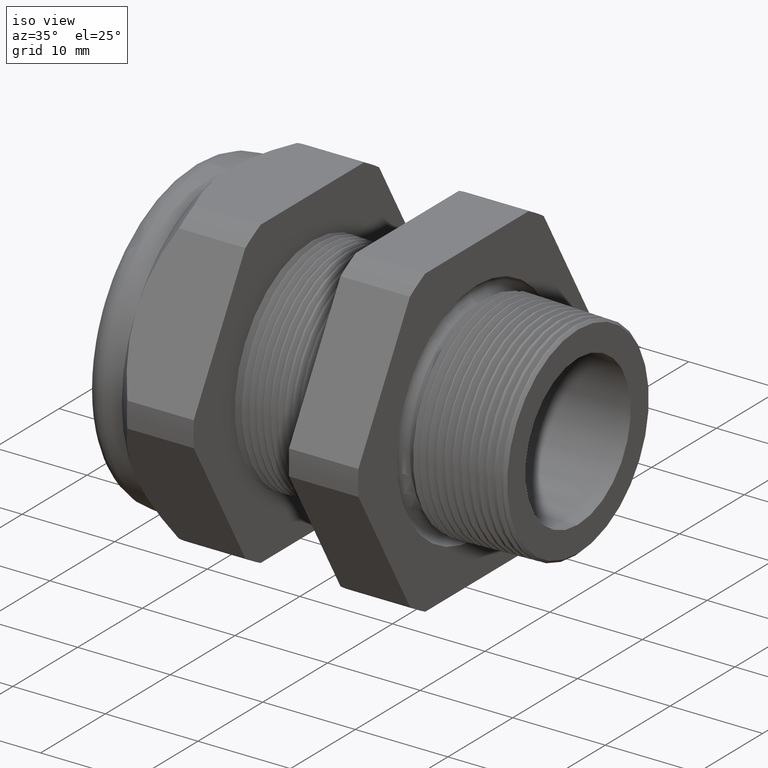
[diagram: clean part render]
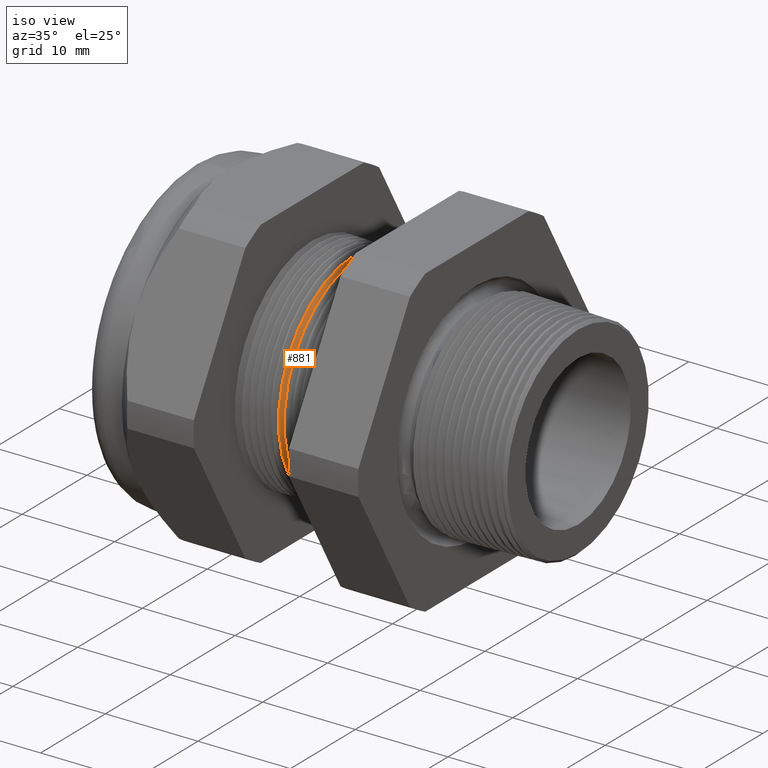
[diagram: same view with one face highlighted and labeled with its STEP entity id]
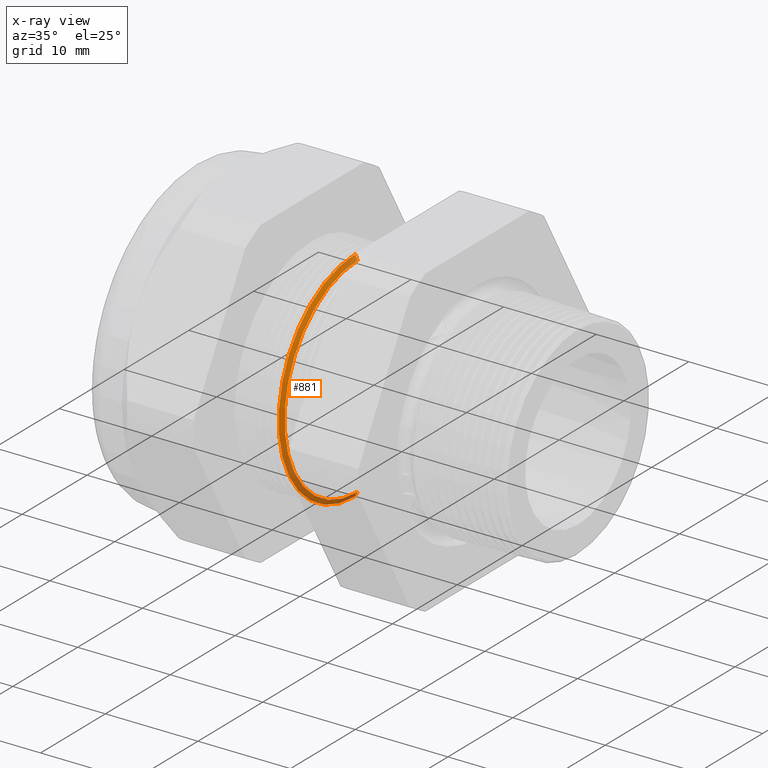
[diagram: x-ray of the same camera — body ghosted, the highlighted face saturated]
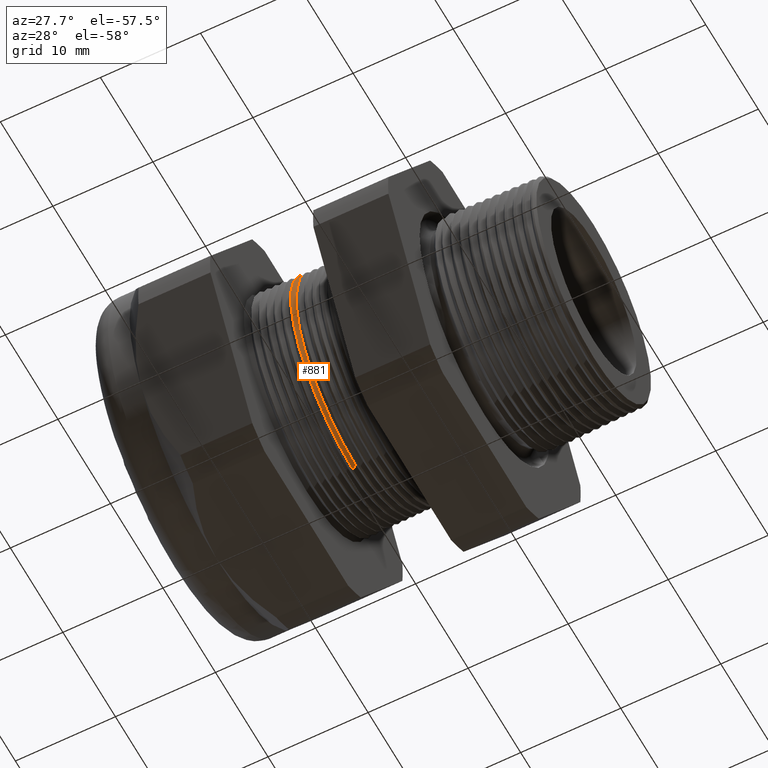
[diagram: same view with one face highlighted and labeled with its STEP entity id]
A machine part, iso view. The second image highlights one B-rep face of the part: STEP entity #881.
The next image is the same camera in x-ray: the body ghosted, the highlighted face saturated — about 29% of this face is hidden behind the body in this view.
A second angle (auxiliary view) of the same face is appended — the face is thin or edge-on in the first view.
In plain terms, the highlighted conical surface has half-angle 61.5 deg.
Its self-contained STEP definition (entity closure, byte-faithful):
#546 = VERTEX_POINT ( 'NONE', #2556 ) ;
#549 = VERTEX_POINT ( 'NONE', #2550 ) ;
#551 = EDGE_CURVE ( 'NONE', #561, #549, #2549, .T. ) ;
#560 = VERTEX_POINT ( 'NONE', #2587 ) ;
#561 = VERTEX_POINT ( 'NONE', #2586 ) ;
#628 = EDGE_CURVE ( 'NONE', #560, #546, #2722, .T. ) ;
#861 = ORIENTED_EDGE ( 'NONE', *, *, #551, .T. ) ;
#862 = ORIENTED_EDGE ( 'NONE', *, *, #5696, .T. ) ;
#881 = ADVANCED_FACE ( 'NONE', ( #3044 ), #3039, .T. ) ;
#882 = EDGE_LOOP ( 'NONE', ( #933, #934, #861, #862 ) ) ;
#933 = ORIENTED_EDGE ( 'NONE', *, *, #628, .F. ) ;
#934 = ORIENTED_EDGE ( 'NONE', *, *, #935, .F. ) ;
#935 = EDGE_CURVE ( 'NONE', #561, #560, #3095, .T. ) ;
#2546 = DIRECTION ( 'NONE',  ( -0.4771587602596201200, 0.0000000000000000000, 0.8788171126619589400 ) ) ;
#2547 = VECTOR ( 'NONE', #2546, 39.37007874015748100 ) ;
#2548 = CARTESIAN_POINT ( 'NONE',  ( -0.8303149606299211600, 0.0000000000000000000, 0.4699999999999999700 ) ) ;
#2549 = LINE ( 'NONE', #2548, #2547 ) ;
#2550 = CARTESIAN_POINT ( 'NONE',  ( -0.8277188464437456000, 0.0000000000000000000, 0.4652185524750837600 ) ) ;
#2556 = CARTESIAN_POINT ( 'NONE',  ( -0.8277188464437456000, 5.698263402483627700E-017, -0.4652185524750837600 ) ) ;
#2586 = CARTESIAN_POINT ( 'NONE',  ( -0.8165405736958172300, 0.0000000000000000000, 0.4446307351718083400 ) ) ;
#2587 = CARTESIAN_POINT ( 'NONE',  ( -0.8165405736958172300, 5.571220089116329200E-017, -0.4446307351718083400 ) ) ;
#2714 = DIRECTION ( 'NONE',  ( -0.4771587602596201200, 1.076240564057387000E-016, -0.8788171126619589400 ) ) ;
#2715 = VECTOR ( 'NONE', #2714, 39.37007874015748100 ) ;
#2716 = CARTESIAN_POINT ( 'NONE',  ( -0.8303149606299211600, 5.755839955992559700E-017, -0.4699999999999999700 ) ) ;
#2722 = LINE ( 'NONE', #2716, #2715 ) ;
#3034 = DIRECTION ( 'NONE',  ( 0.0000000000000000000, 0.0000000000000000000, 1.000000000000000000 ) ) ;
#3035 = DIRECTION ( 'NONE',  ( -1.000000000000000000, 0.0000000000000000000, 0.0000000000000000000 ) ) ;
#3036 = CARTESIAN_POINT ( 'NONE',  ( -0.8303149606299211600, 0.0000000000000000000, 0.0000000000000000000 ) ) ;
#3037 = AXIS2_PLACEMENT_3D ( 'NONE', #3036, #3035, #3034 ) ;
#3039 = CONICAL_SURFACE ( 'NONE', #3037, 0.4699999999999999700, 1.073377489976499400 ) ;
#3044 = FACE_OUTER_BOUND ( 'NONE', #882, .T. ) ;
#3089 = CARTESIAN_POINT ( 'NONE',  ( -0.8165405736958172300, 0.0000000000000000000, 0.0000000000000000000 ) ) ;
#3090 = AXIS2_PLACEMENT_3D ( 'NONE', #3089, #3151, #3150 ) ;
#3095 = CIRCLE ( 'NONE', #3090, 0.4446307351718083400 ) ;
#3150 = DIRECTION ( 'NONE',  ( 0.0000000000000000000, 0.0000000000000000000, -1.000000000000000000 ) ) ;
#3151 = DIRECTION ( 'NONE',  ( 1.000000000000000000, 0.0000000000000000000, 0.0000000000000000000 ) ) ;
#5046 = DIRECTION ( 'NONE',  ( 0.0000000000000000000, 0.0000000000000000000, 1.000000000000000000 ) ) ;
#5047 = DIRECTION ( 'NONE',  ( 1.000000000000000000, 0.0000000000000000000, 0.0000000000000000000 ) ) ;
#5048 = CARTESIAN_POINT ( 'NONE',  ( -0.8277188464437456000, 0.0000000000000000000, 0.0000000000000000000 ) ) ;
#5049 = AXIS2_PLACEMENT_3D ( 'NONE', #5048, #5047, #5046 ) ;
#5050 = CIRCLE ( 'NONE', #5049, 0.4652185524750837600 ) ;
#5696 = EDGE_CURVE ( 'NONE', #549, #546, #5050, .T. ) ;